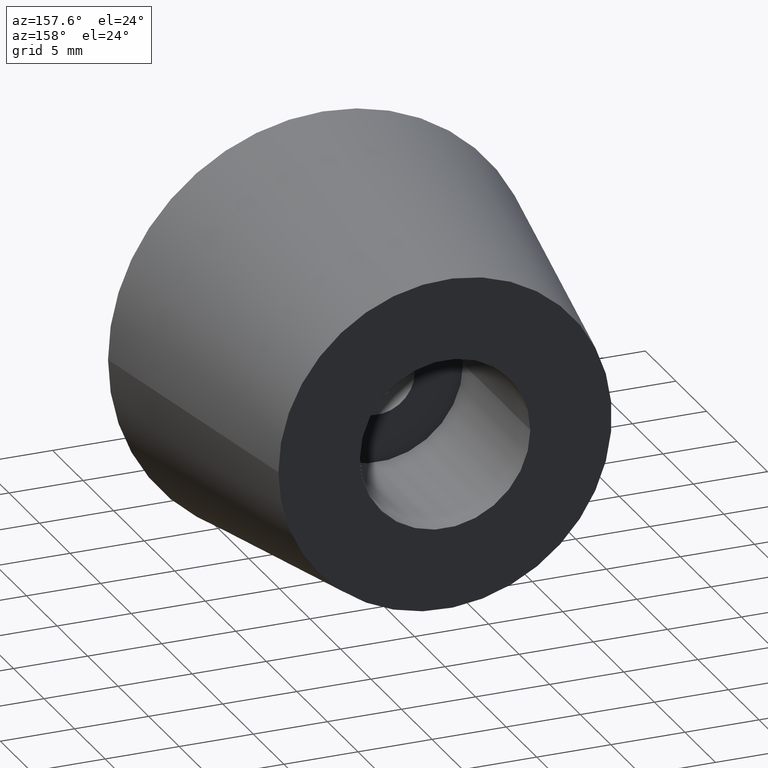
[diagram: clean part render]
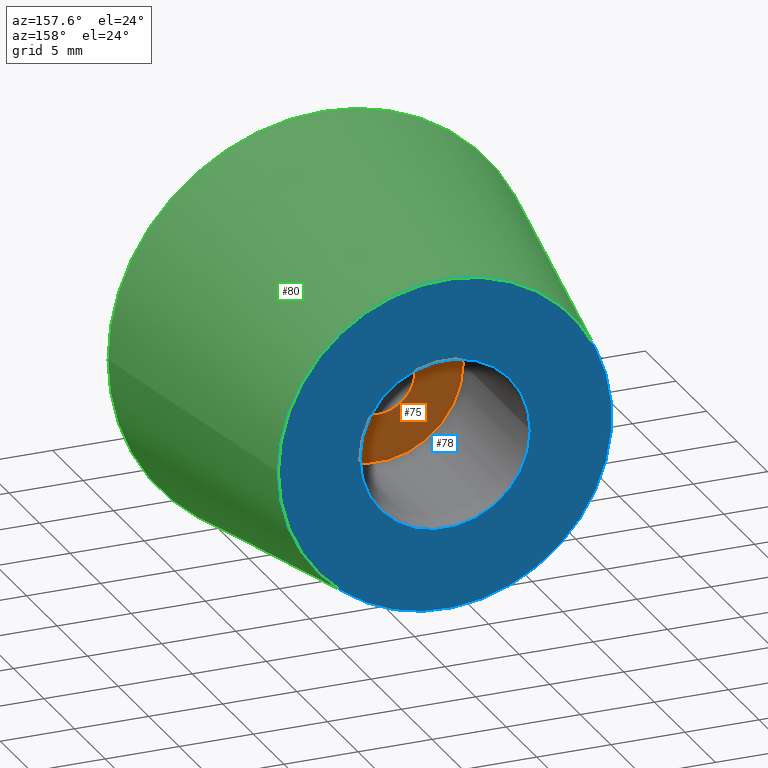
[diagram: same view with three faces highlighted in distinct colors, each labeled with its STEP entity id]
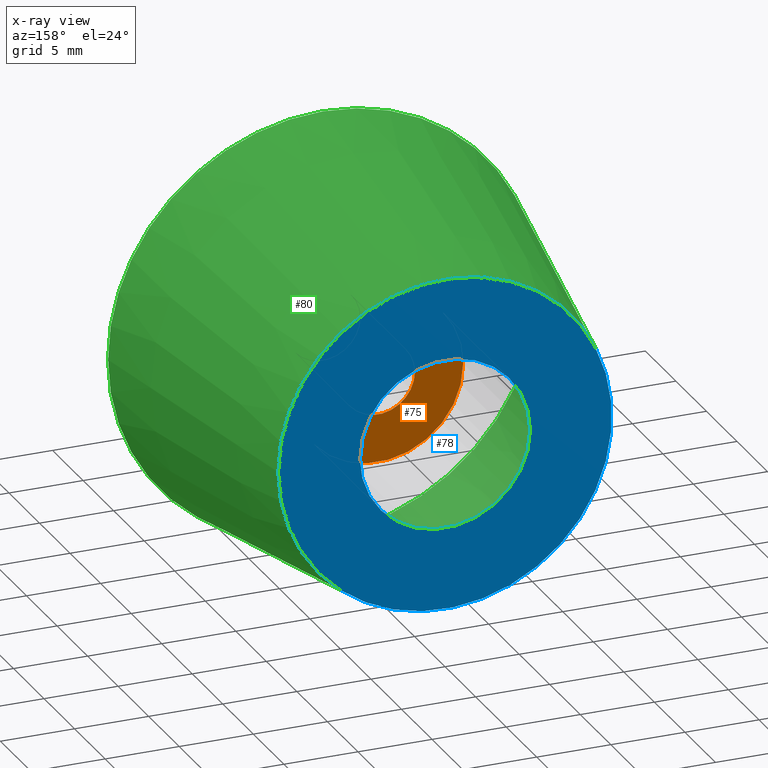
[diagram: x-ray of the same camera — body ghosted, the three highlighted faces saturated]
A machine part, auxiliary view with three faces highlighted in distinct colors.
The next image is the same camera in x-ray (body ghosted, the three faces saturated) — at least one of them is partly hidden behind the body in this view.
Their STEP definitions:

[orange] entity #75 — the highlighted planar face has unit normal (0, 1, 0).
#18=FACE_BOUND('',#31,.T.);
#24=FACE_OUTER_BOUND('',#30,.T.);
#30=EDGE_LOOP('',(#60));
#31=EDGE_LOOP('',(#61));
#42=CIRCLE('',#84,5.75);
#43=CIRCLE('',#85,2.5);
#48=VERTEX_POINT('',#123);
#49=VERTEX_POINT('',#125);
#54=EDGE_CURVE('',#48,#48,#42,.T.);
#55=EDGE_CURVE('',#49,#49,#43,.T.);
#60=ORIENTED_EDGE('',*,*,#54,.T.);
#61=ORIENTED_EDGE('',*,*,#55,.F.);
#72=PLANE('',#83);
#75=ADVANCED_FACE('',(#24,#18),#72,.T.);
#83=AXIS2_PLACEMENT_3D('',#122,#97,#98);
#84=AXIS2_PLACEMENT_3D('',#124,#99,#100);
#85=AXIS2_PLACEMENT_3D('',#126,#101,#102);
#97=DIRECTION('center_axis',(0.,1.,0.));
#98=DIRECTION('ref_axis',(-1.,0.,0.));
#99=DIRECTION('center_axis',(0.,1.,0.));
#100=DIRECTION('ref_axis',(-1.,0.,0.));
#101=DIRECTION('center_axis',(0.,1.,0.));
#102=DIRECTION('ref_axis',(-1.,0.,0.));
#122=CARTESIAN_POINT('Origin',(0.,9.,0.));
#123=CARTESIAN_POINT('',(-5.75,9.,0.));
#124=CARTESIAN_POINT('Origin',(0.,9.,0.));
#125=CARTESIAN_POINT('',(2.5,9.,-3.06161699786838E-16));
#126=CARTESIAN_POINT('Origin',(0.,9.,0.));

[blue] entity #78 — the highlighted planar face has unit normal (0, -1, 0).
#21=FACE_BOUND('',#37,.T.);
#27=FACE_OUTER_BOUND('',#36,.T.);
#36=EDGE_LOOP('',(#66));
#37=EDGE_LOOP('',(#67));
#44=CIRCLE('',#87,5.75);
#46=CIRCLE('',#91,11.25);
#50=VERTEX_POINT('',#128);
#52=VERTEX_POINT('',#134);
#56=EDGE_CURVE('',#50,#50,#44,.T.);
#58=EDGE_CURVE('',#52,#52,#46,.T.);
#66=ORIENTED_EDGE('',*,*,#58,.F.);
#67=ORIENTED_EDGE('',*,*,#56,.T.);
#73=PLANE('',#90);
#78=ADVANCED_FACE('',(#27,#21),#73,.F.);
#87=AXIS2_PLACEMENT_3D('',#129,#105,#106);
#90=AXIS2_PLACEMENT_3D('',#133,#111,#112);
#91=AXIS2_PLACEMENT_3D('',#135,#113,#114);
#105=DIRECTION('center_axis',(0.,-1.,0.));
#106=DIRECTION('ref_axis',(-1.,0.,0.));
#111=DIRECTION('center_axis',(0.,-1.,0.));
#112=DIRECTION('ref_axis',(0.,0.,-1.));
#113=DIRECTION('center_axis',(0.,-1.,0.));
#114=DIRECTION('ref_axis',(1.,0.,0.));
#128=CARTESIAN_POINT('',(-5.75,20.,0.));
#129=CARTESIAN_POINT('Origin',(0.,20.,0.));
#133=CARTESIAN_POINT('Origin',(0.,20.,0.));
#134=CARTESIAN_POINT('',(11.25,20.,0.));
#135=CARTESIAN_POINT('Origin',(0.,20.,0.));

[green] entity #80 — the highlighted conical surface has half-angle 9.23 deg.
#15=CONICAL_SURFACE('',#94,14.5,9.22988624372772);
#23=FACE_BOUND('',#41,.T.);
#29=FACE_OUTER_BOUND('',#40,.T.);
#40=EDGE_LOOP('',(#70));
#41=EDGE_LOOP('',(#71));
#46=CIRCLE('',#91,11.25);
#47=CIRCLE('',#93,14.5);
#52=VERTEX_POINT('',#134);
#53=VERTEX_POINT('',#137);
#58=EDGE_CURVE('',#52,#52,#46,.T.);
#59=EDGE_CURVE('',#53,#53,#47,.T.);
#70=ORIENTED_EDGE('',*,*,#59,.T.);
#71=ORIENTED_EDGE('',*,*,#58,.T.);
#80=ADVANCED_FACE('',(#29,#23),#15,.T.);
#91=AXIS2_PLACEMENT_3D('',#135,#113,#114);
#93=AXIS2_PLACEMENT_3D('',#138,#117,#118);
#94=AXIS2_PLACEMENT_3D('',#139,#119,#120);
#113=DIRECTION('center_axis',(0.,-1.,0.));
#114=DIRECTION('ref_axis',(1.,0.,0.));
#117=DIRECTION('center_axis',(0.,1.,0.));
#118=DIRECTION('ref_axis',(1.,0.,0.));
#119=DIRECTION('center_axis',(0.,-1.,0.));
#120=DIRECTION('ref_axis',(1.,0.,0.));
#134=CARTESIAN_POINT('',(11.25,20.,0.));
#135=CARTESIAN_POINT('Origin',(0.,20.,0.));
#137=CARTESIAN_POINT('',(14.5,0.,0.));
#138=CARTESIAN_POINT('Origin',(0.,0.,0.));
#139=CARTESIAN_POINT('Origin',(0.,0.,0.));